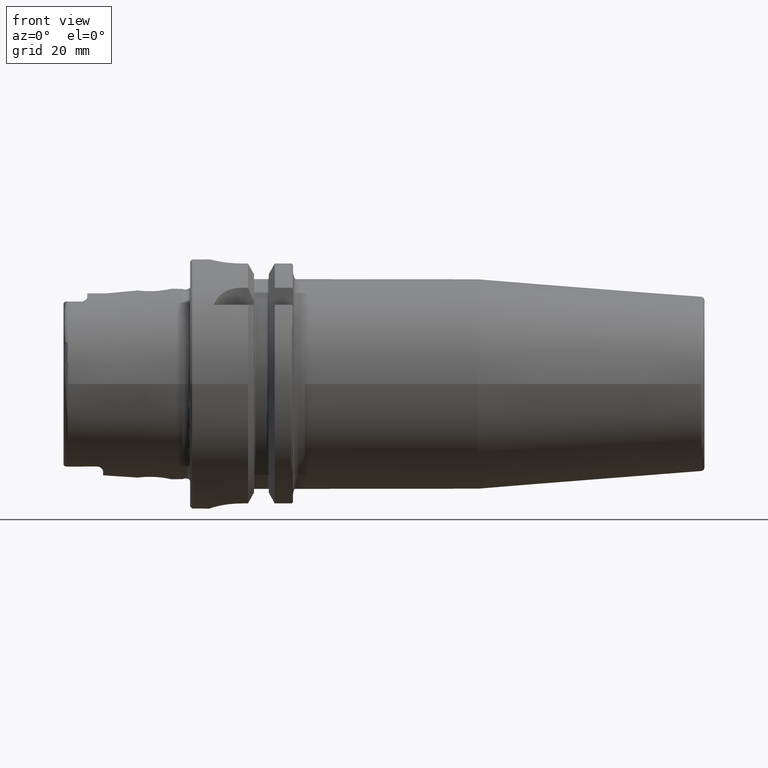
[diagram: clean part render]
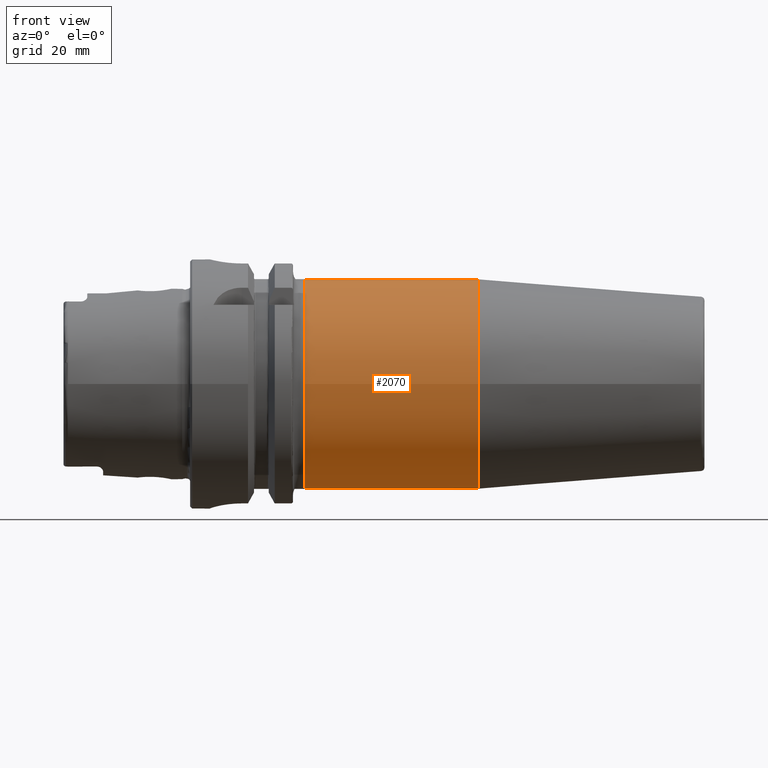
[diagram: same view with one face highlighted and labeled with its STEP entity id]
A machine part, front view. The second image highlights one B-rep face of the part: STEP entity #2070.
In plain terms, the highlighted cylindrical surface (bore or boss wall) has radius 26.5 mm, axis along (1, 0, 0).
Its self-contained STEP definition (entity closure, byte-faithful):
#193=CYLINDRICAL_SURFACE('',#2237,26.5);
#238=FACE_OUTER_BOUND('',#365,.T.);
#365=EDGE_LOOP('',(#1435,#1436,#1437,#1438,#1439,#1440));
#496=LINE('',#3208,#604);
#604=VECTOR('',#2546,26.5);
#713=CIRCLE('',#2227,26.5);
#715=CIRCLE('',#2230,26.5);
#716=CIRCLE('',#2231,26.5);
#720=CIRCLE('',#2238,26.5);
#846=VERTEX_POINT('',#3145);
#851=VERTEX_POINT('',#3164);
#852=VERTEX_POINT('',#3171);
#853=VERTEX_POINT('',#3173);
#1067=EDGE_CURVE('',#846,#846,#713,.T.);
#1072=EDGE_CURVE('',#851,#852,#715,.T.);
#1073=EDGE_CURVE('',#852,#853,#716,.T.);
#1084=EDGE_CURVE('',#846,#852,#496,.T.);
#1085=EDGE_CURVE('',#853,#851,#720,.T.);
#1435=ORIENTED_EDGE('',*,*,#1067,.F.);
#1436=ORIENTED_EDGE('',*,*,#1084,.T.);
#1437=ORIENTED_EDGE('',*,*,#1072,.F.);
#1438=ORIENTED_EDGE('',*,*,#1085,.F.);
#1439=ORIENTED_EDGE('',*,*,#1073,.F.);
#1440=ORIENTED_EDGE('',*,*,#1084,.F.);
#2070=ADVANCED_FACE('',(#238),#193,.T.);
#2227=AXIS2_PLACEMENT_3D('',#3147,#2520,#2521);
#2230=AXIS2_PLACEMENT_3D('',#3172,#2526,#2527);
#2231=AXIS2_PLACEMENT_3D('',#3174,#2528,#2529);
#2237=AXIS2_PLACEMENT_3D('',#3207,#2544,#2545);
#2238=AXIS2_PLACEMENT_3D('',#3209,#2547,#2548);
#2520=DIRECTION('center_axis',(1.,0.,0.));
#2521=DIRECTION('ref_axis',(0.,0.,-1.));
#2526=DIRECTION('center_axis',(-1.,0.,0.));
#2527=DIRECTION('ref_axis',(0.,-1.,-1.22464679914735E-16));
#2528=DIRECTION('center_axis',(-1.,0.,0.));
#2529=DIRECTION('ref_axis',(0.,-1.,-1.22464679914735E-16));
#2544=DIRECTION('center_axis',(1.,0.,0.));
#2545=DIRECTION('ref_axis',(0.,1.,0.));
#2546=DIRECTION('',(-1.,0.,0.));
#2547=DIRECTION('center_axis',(-1.,0.,0.));
#2548=DIRECTION('ref_axis',(0.,1.,0.));
#3145=CARTESIAN_POINT('',(72.8220786872141,-26.5,-3.24531401774049E-15));
#3147=CARTESIAN_POINT('Origin',(72.8220786872141,0.,0.));
#3164=CARTESIAN_POINT('',(29.,0.,-26.5));
#3171=CARTESIAN_POINT('',(29.,-26.5,-3.24531401774049E-15));
#3172=CARTESIAN_POINT('Origin',(29.,0.,0.));
#3173=CARTESIAN_POINT('',(29.,0.,26.5));
#3174=CARTESIAN_POINT('Origin',(29.,0.,0.));
#3207=CARTESIAN_POINT('Origin',(49.4110393436071,0.,0.));
#3208=CARTESIAN_POINT('',(49.4110393436071,-26.5,-3.24531401774049E-15));
#3209=CARTESIAN_POINT('Origin',(29.,0.,0.));